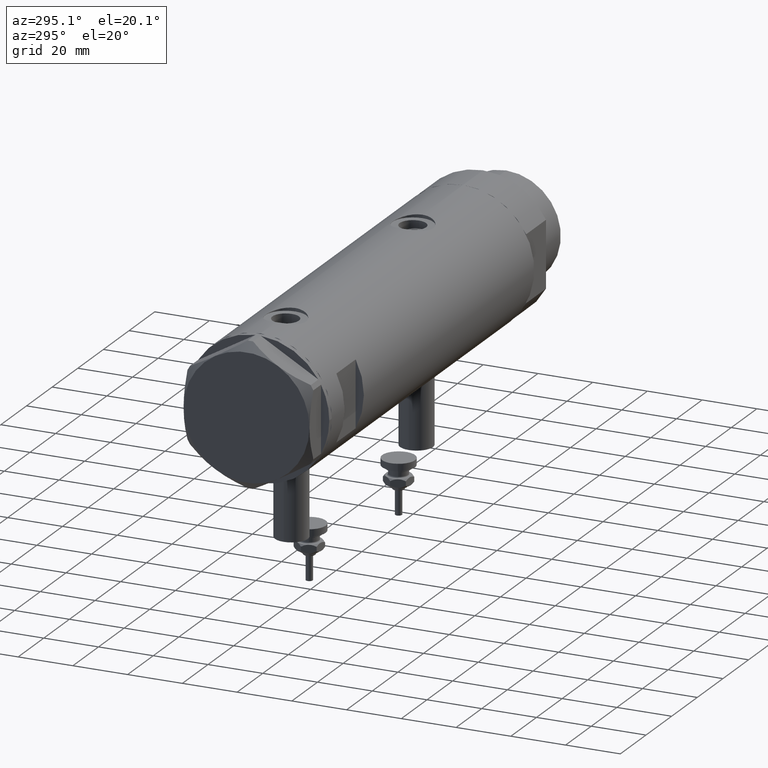
[diagram: clean part render]
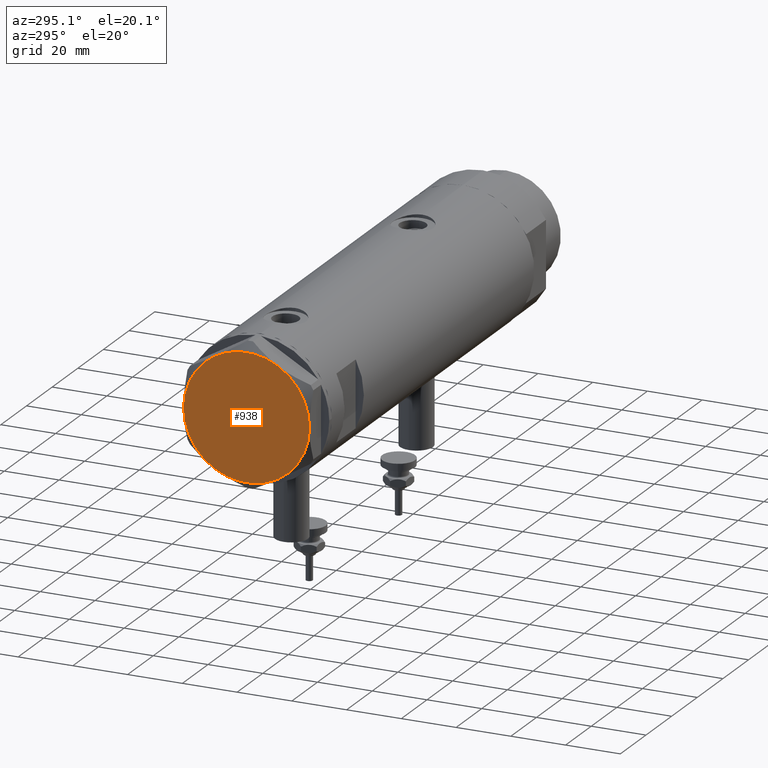
[diagram: same view with one face highlighted and labeled with its STEP entity id]
A machine part, auxiliary view. The second image highlights one B-rep face of the part: STEP entity #938.
In plain terms, the highlighted planar face has unit normal (-1, -0, 0).
Its self-contained STEP definition (entity closure, byte-faithful):
#136 = DIRECTION ( 'NONE',  ( 1.000000000000000000, 0.000000000000000000, 0.000000000000000000 ) ) ;
#232 = VERTEX_POINT ( 'NONE', #800 ) ;
#277 = CIRCLE ( 'NONE', #2841, 23.00000000000004619 ) ;
#408 = FACE_OUTER_BOUND ( 'NONE', #6076, .T. ) ;
#472 = EDGE_CURVE ( 'NONE', #2925, #3597, #277, .T. ) ;
#481 = DIRECTION ( 'NONE',  ( 0.000000000000000000, 0.000000000000000000, 1.000000000000000000 ) ) ;
#662 = CARTESIAN_POINT ( 'NONE',  ( -23.00000000000004619, -8.112498833180673323E-14, 9.000000000000000000 ) ) ;
#800 = CARTESIAN_POINT ( 'NONE',  ( 22.99999999999995026, 2.373657066004705010E-13, 9.000000000000000000 ) ) ;
#806 = CIRCLE ( 'NONE', #4379, 23.00000000000004619 ) ;
#926 = CARTESIAN_POINT ( 'NONE',  ( 11.50000000000018296, -19.91858428704203732, 9.000000000000000000 ) ) ;
#938 = ADVANCED_FACE ( 'NONE', ( #408 ), #5731, .T. ) ;
#1047 = VERTEX_POINT ( 'NONE', #2622 ) ;
#1229 = DIRECTION ( 'NONE',  ( 0.000000000000000000, 0.000000000000000000, 1.000000000000000000 ) ) ;
#1272 = CARTESIAN_POINT ( 'NONE',  ( 0.000000000000000000, 0.000000000000000000, 9.000000000000000000 ) ) ;
#1317 = CARTESIAN_POINT ( 'NONE',  ( 0.000000000000000000, 0.000000000000000000, 9.000000000000000000 ) ) ;
#1448 = ORIENTED_EDGE ( 'NONE', *, *, #472, .T. ) ;
#1508 = AXIS2_PLACEMENT_3D ( 'NONE', #5558, #2587, #136 ) ;
#1830 = AXIS2_PLACEMENT_3D ( 'NONE', #4234, #1229, #4137 ) ;
#1956 = EDGE_CURVE ( 'NONE', #1047, #5628, #2034, .T. ) ;
#2034 = CIRCLE ( 'NONE', #1830, 23.00000000000004619 ) ;
#2057 = ORIENTED_EDGE ( 'NONE', *, *, #2438, .T. ) ;
#2294 = EDGE_CURVE ( 'NONE', #232, #2925, #806, .T. ) ;
#2438 = EDGE_CURVE ( 'NONE', #3597, #4478, #4912, .T. ) ;
#2482 = ORIENTED_EDGE ( 'NONE', *, *, #2294, .T. ) ;
#2587 = DIRECTION ( 'NONE',  ( 0.000000000000000000, 0.000000000000000000, 1.000000000000000000 ) ) ;
#2622 = CARTESIAN_POINT ( 'NONE',  ( -11.49999999999990585, -19.91858428704219364, 9.000000000000000000 ) ) ;
#2696 = CARTESIAN_POINT ( 'NONE',  ( 0.000000000000000000, 0.000000000000000000, 9.000000000000000000 ) ) ;
#2800 = EDGE_CURVE ( 'NONE', #4478, #1047, #4373, .T. ) ;
#2841 = AXIS2_PLACEMENT_3D ( 'NONE', #1317, #5833, #3366 ) ;
#2925 = VERTEX_POINT ( 'NONE', #4967 ) ;
#3296 = DIRECTION ( 'NONE',  ( 0.000000000000000000, 0.000000000000000000, 1.000000000000000000 ) ) ;
#3366 = DIRECTION ( 'NONE',  ( 1.000000000000000000, 0.000000000000000000, 0.000000000000000000 ) ) ;
#3398 = CARTESIAN_POINT ( 'NONE',  ( 0.000000000000000000, 0.000000000000000000, 9.000000000000000000 ) ) ;
#3597 = VERTEX_POINT ( 'NONE', #5336 ) ;
#3856 = AXIS2_PLACEMENT_3D ( 'NONE', #4806, #3296, #4283 ) ;
#4028 = DIRECTION ( 'NONE',  ( 1.000000000000000000, 0.000000000000000000, 0.000000000000000000 ) ) ;
#4137 = DIRECTION ( 'NONE',  ( 1.000000000000000000, 0.000000000000000000, 0.000000000000000000 ) ) ;
#4234 = CARTESIAN_POINT ( 'NONE',  ( 0.000000000000000000, 0.000000000000000000, 9.000000000000000000 ) ) ;
#4248 = DIRECTION ( 'NONE',  ( 1.000000000000000000, 0.000000000000000000, 0.000000000000000000 ) ) ;
#4283 = DIRECTION ( 'NONE',  ( 1.000000000000000000, 0.000000000000000000, -0.000000000000000000 ) ) ;
#4322 = DIRECTION ( 'NONE',  ( 1.000000000000000000, 0.000000000000000000, 0.000000000000000000 ) ) ;
#4373 = CIRCLE ( 'NONE', #1508, 23.00000000000004619 ) ;
#4379 = AXIS2_PLACEMENT_3D ( 'NONE', #2696, #4645, #4028 ) ;
#4478 = VERTEX_POINT ( 'NONE', #662 ) ;
#4531 = ORIENTED_EDGE ( 'NONE', *, *, #5375, .T. ) ;
#4645 = DIRECTION ( 'NONE',  ( 0.000000000000000000, 0.000000000000000000, 1.000000000000000000 ) ) ;
#4806 = CARTESIAN_POINT ( 'NONE',  ( 0.000000000000000000, 0.000000000000000000, 9.000000000000000000 ) ) ;
#4912 = CIRCLE ( 'NONE', #5008, 23.00000000000004619 ) ;
#4967 = CARTESIAN_POINT ( 'NONE',  ( 11.49999999999990408, 19.91858428704219364, 9.000000000000000000 ) ) ;
#5008 = AXIS2_PLACEMENT_3D ( 'NONE', #1272, #5763, #4248 ) ;
#5126 = AXIS2_PLACEMENT_3D ( 'NONE', #3398, #481, #4322 ) ;
#5178 = ORIENTED_EDGE ( 'NONE', *, *, #2800, .T. ) ;
#5336 = CARTESIAN_POINT ( 'NONE',  ( -11.50000000000004441, 19.91858428704211548, 9.000000000000000000 ) ) ;
#5375 = EDGE_CURVE ( 'NONE', #5628, #232, #6041, .T. ) ;
#5558 = CARTESIAN_POINT ( 'NONE',  ( 0.000000000000000000, 0.000000000000000000, 9.000000000000000000 ) ) ;
#5628 = VERTEX_POINT ( 'NONE', #926 ) ;
#5731 = PLANE ( 'NONE',  #3856 ) ;
#5755 = ORIENTED_EDGE ( 'NONE', *, *, #1956, .T. ) ;
#5763 = DIRECTION ( 'NONE',  ( 0.000000000000000000, 0.000000000000000000, 1.000000000000000000 ) ) ;
#5833 = DIRECTION ( 'NONE',  ( 0.000000000000000000, 0.000000000000000000, 1.000000000000000000 ) ) ;
#6041 = CIRCLE ( 'NONE', #5126, 23.00000000000004619 ) ;
#6076 = EDGE_LOOP ( 'NONE', ( #4531, #2482, #1448, #2057, #5178, #5755 ) ) ;